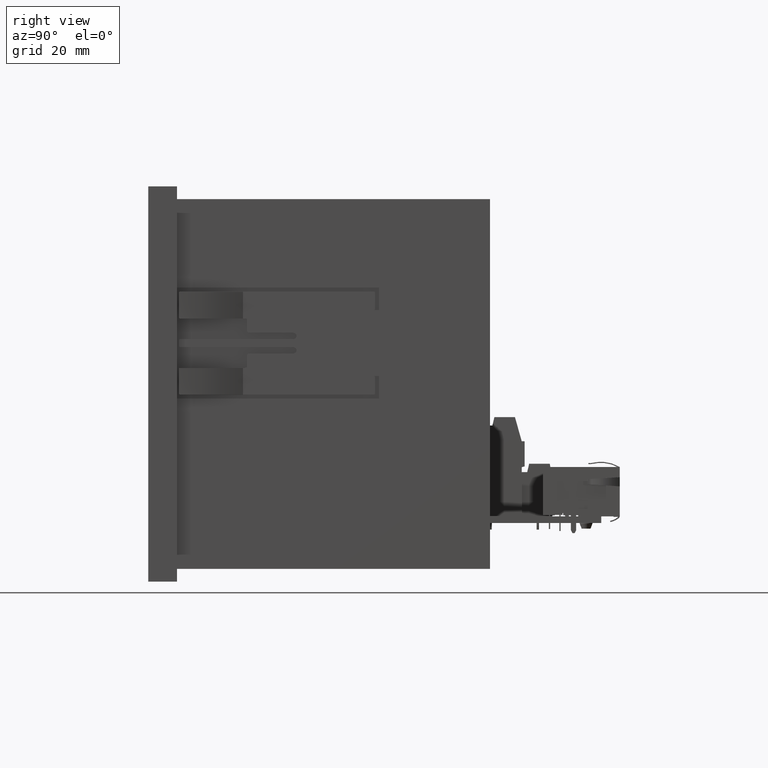
[diagram: clean part render]
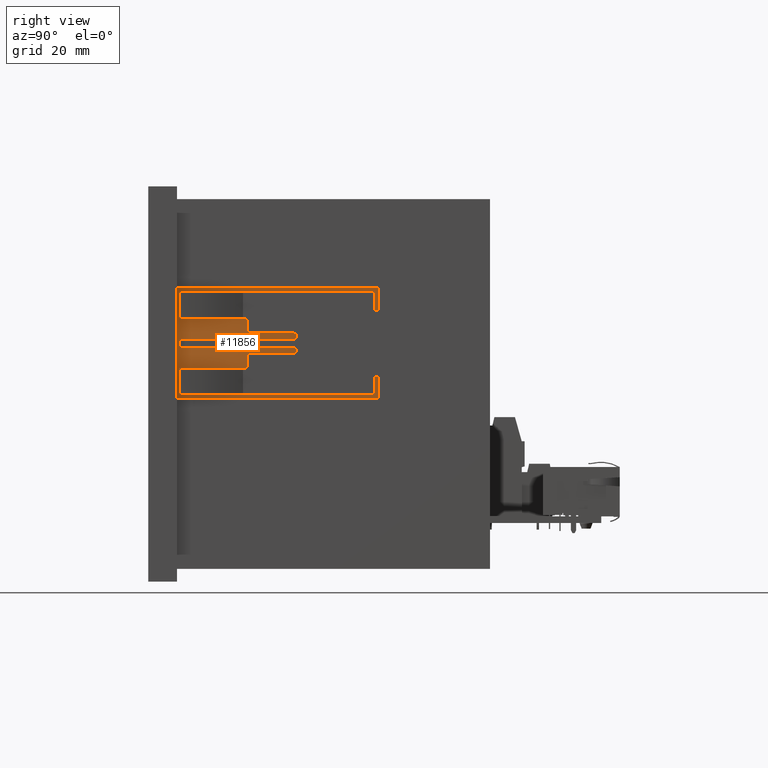
[diagram: same view with one face highlighted and labeled with its STEP entity id]
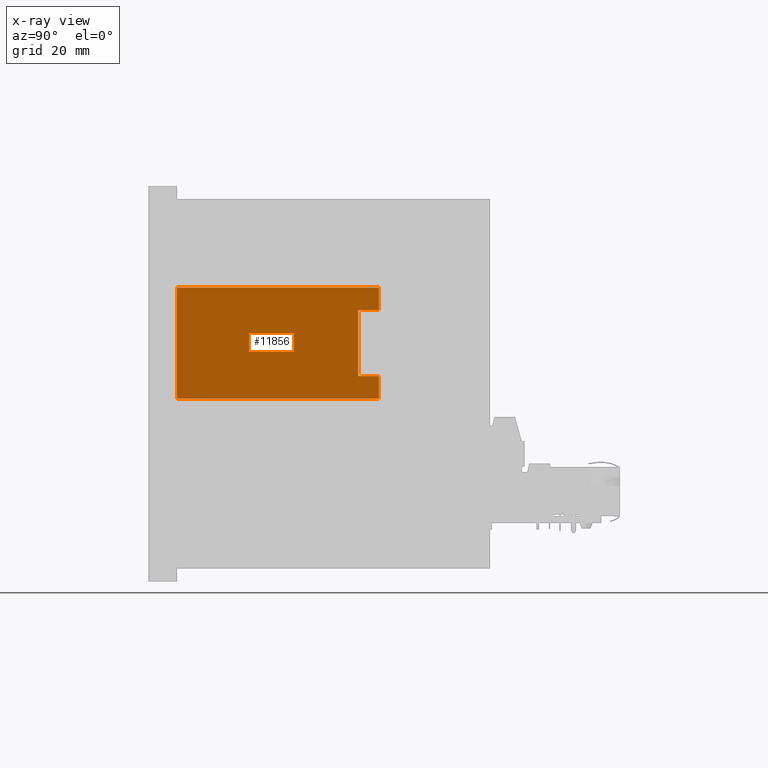
[diagram: x-ray of the same camera — body ghosted, the highlighted face saturated]
A machine part, right view. The second image highlights one B-rep face of the part: STEP entity #11856.
The next image is the same camera in x-ray: the body ghosted, the highlighted face saturated — about 0% of this face is hidden behind the body in this view.
In plain terms, the highlighted planar face has unit normal (-1, 0, 0).
Its self-contained STEP definition (entity closure, byte-faithful):
#11615=CARTESIAN_POINT('',(-60.657093014422593,-125.589066365486590,26.499999999999996));
#11616=VERTEX_POINT('',#11615);
#11617=CARTESIAN_POINT('',(-55.157093014422600,-125.589066365486590,26.500000000000000));
#11618=VERTEX_POINT('',#11617);
#11619=CARTESIAN_POINT('',(-60.657093014422593,-125.589066365486590,26.499999999999996));
#11620=DIRECTION('',(1.0,0.0,0.0));
#11621=VECTOR('',#11620,5.499999999999993);
#11622=LINE('',#11619,#11621);
#11623=EDGE_CURVE('',#11616,#11618,#11622,.T.);
#11655=CARTESIAN_POINT('',(-55.157093014422600,-125.589066365486590,31.500000000000000));
#11656=VERTEX_POINT('',#11655);
#11657=CARTESIAN_POINT('',(-55.157093014422600,-125.589066365486590,26.500000000000000));
#11658=DIRECTION('',(0.0,0.0,1.0));
#11659=VECTOR('',#11658,5.0);
#11660=LINE('',#11657,#11659);
#11661=EDGE_CURVE('',#11618,#11656,#11660,.T.);
#11686=CARTESIAN_POINT('',(-39.157093014422600,-125.589066365486590,31.500000000000000));
#11687=VERTEX_POINT('',#11686);
#11688=CARTESIAN_POINT('',(-55.157093014422600,-125.589066365486590,31.500000000000000));
#11689=DIRECTION('',(1.0,0.0,0.0));
#11690=VECTOR('',#11689,16.0);
#11691=LINE('',#11688,#11690);
#11692=EDGE_CURVE('',#11656,#11687,#11691,.T.);
#11717=CARTESIAN_POINT('',(-39.157093014422593,-125.589066365486590,26.500000000000004));
#11718=VERTEX_POINT('',#11717);
#11719=CARTESIAN_POINT('',(-39.157093014422600,-125.589066365486590,31.500000000000000));
#11720=DIRECTION('',(0.0,0.0,-1.0));
#11721=VECTOR('',#11720,4.999999999999996);
#11722=LINE('',#11719,#11721);
#11723=EDGE_CURVE('',#11687,#11718,#11722,.T.);
#11748=CARTESIAN_POINT('',(-33.657093014422593,-125.589066365486590,26.500000000000000));
#11749=VERTEX_POINT('',#11748);
#11750=CARTESIAN_POINT('',(-39.157093014422593,-125.589066365486590,26.500000000000004));
#11751=DIRECTION('',(1.0,0.0,0.0));
#11752=VECTOR('',#11751,5.500000000000000);
#11753=LINE('',#11750,#11752);
#11754=EDGE_CURVE('',#11718,#11749,#11753,.T.);
#11779=CARTESIAN_POINT('',(-33.657093014422600,-125.589066365486590,75.500000000000000));
#11780=VERTEX_POINT('',#11779);
#11781=CARTESIAN_POINT('',(-33.657093014422593,-125.589066365486590,26.500000000000000));
#11782=DIRECTION('',(0.0,0.0,1.0));
#11783=VECTOR('',#11782,49.0);
#11784=LINE('',#11781,#11783);
#11785=EDGE_CURVE('',#11749,#11780,#11784,.T.);
#11810=CARTESIAN_POINT('',(-60.657093014422593,-125.589066365486590,75.500000000000000));
#11811=VERTEX_POINT('',#11810);
#11812=CARTESIAN_POINT('',(-60.657093014422593,-125.589066365486590,75.500000000000000));
#11813=DIRECTION('',(0.0,0.0,-1.0));
#11814=VECTOR('',#11813,49.0);
#11815=LINE('',#11812,#11814);
#11816=EDGE_CURVE('',#11811,#11616,#11815,.T.);
#11836=CARTESIAN_POINT('',(-47.157093014422578,-125.589066365486590,50.135802469135804));
#11837=DIRECTION('',(0.0,1.0,0.0));
#11838=DIRECTION('',(0.0,0.0,1.0));
#11839=AXIS2_PLACEMENT_3D('',#11836,#11837,#11838);
#11840=PLANE('',#11839);
#11841=ORIENTED_EDGE('',*,*,#11623,.T.);
#11842=ORIENTED_EDGE('',*,*,#11661,.T.);
#11843=ORIENTED_EDGE('',*,*,#11692,.T.);
#11844=ORIENTED_EDGE('',*,*,#11723,.T.);
#11845=ORIENTED_EDGE('',*,*,#11754,.T.);
#11846=ORIENTED_EDGE('',*,*,#11785,.T.);
#11847=CARTESIAN_POINT('',(-33.657093014422600,-125.589066365486590,75.500000000000000));
#11848=DIRECTION('',(-1.0,0.0,0.0));
#11849=VECTOR('',#11848,26.999999999999993);
#11850=LINE('',#11847,#11849);
#11851=EDGE_CURVE('',#11780,#11811,#11850,.T.);
#11852=ORIENTED_EDGE('',*,*,#11851,.T.);
#11853=ORIENTED_EDGE('',*,*,#11816,.T.);
#11854=EDGE_LOOP('',(#11841,#11842,#11843,#11844,#11845,#11846,#11852,#11853));
#11855=FACE_OUTER_BOUND('',#11854,.T.);
#11856=ADVANCED_FACE('',(#11855),#11840,.F.);